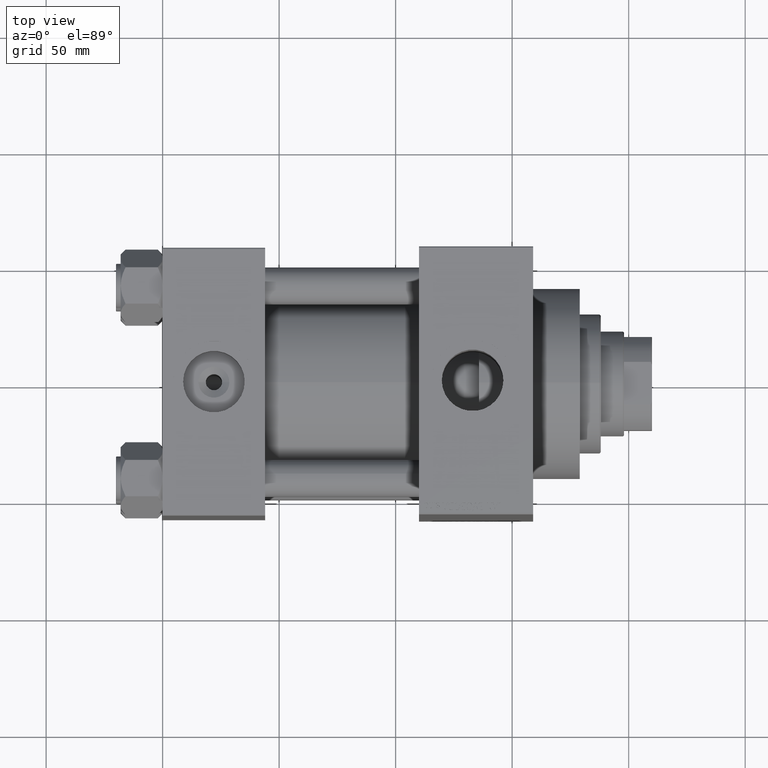
[diagram: clean part render]
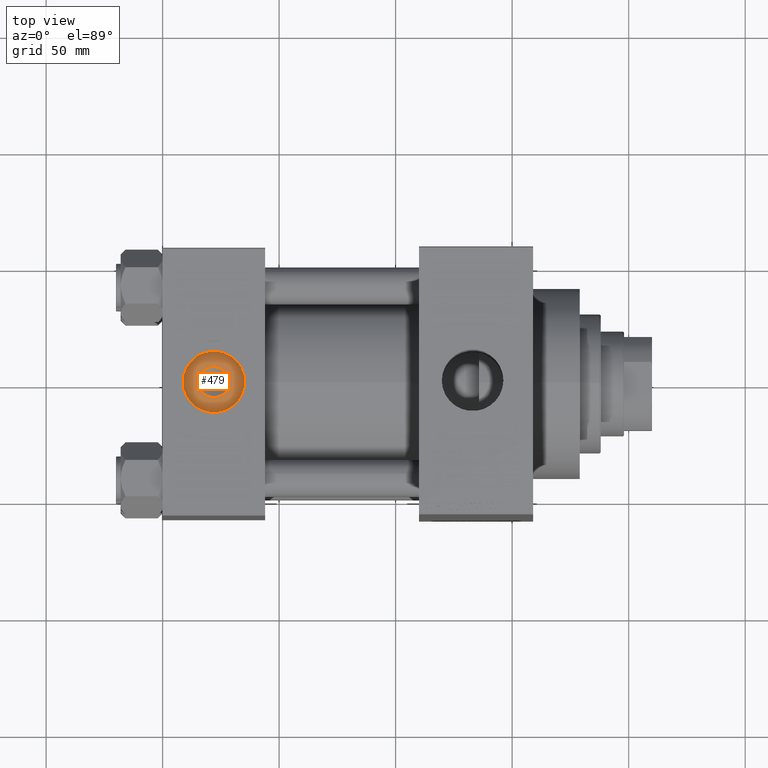
[diagram: same view with one face highlighted and labeled with its STEP entity id]
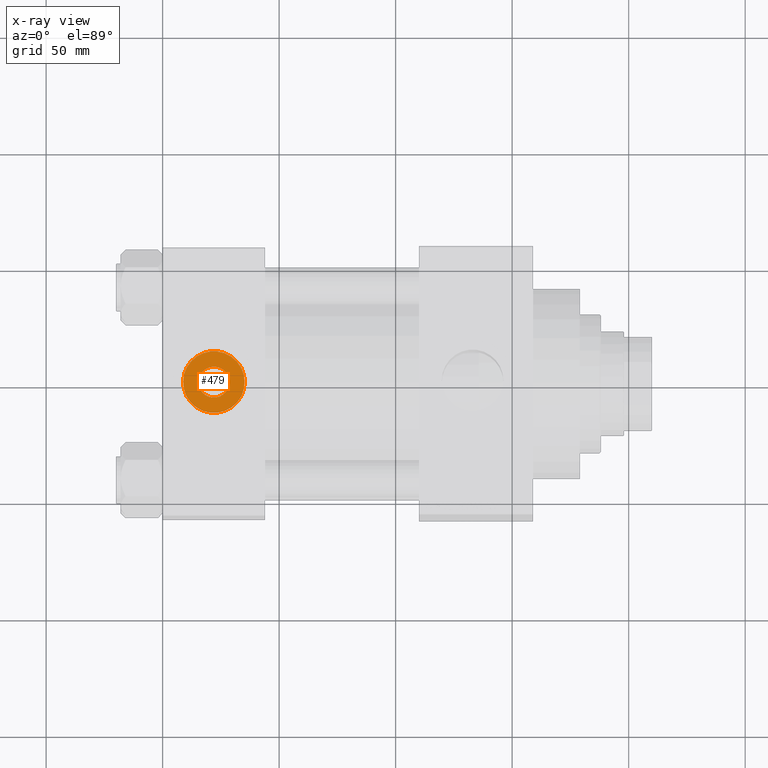
[diagram: x-ray of the same camera — body ghosted, the highlighted face saturated]
A machine part, top view. The second image highlights one B-rep face of the part: STEP entity #479.
The next image is the same camera in x-ray: the body ghosted, the highlighted face saturated — about 0% of this face is hidden behind the body in this view.
In plain terms, the highlighted planar face has unit normal (0, 0, 1).
Its self-contained STEP definition (entity closure, byte-faithful):
#424 = EDGE_LOOP ( 'NONE', ( #35836, #1195 ) ) ;
#449 = ORIENTED_EDGE ( 'NONE', *, *, #18830, .T. ) ;
#479 = ADVANCED_FACE ( 'NONE', ( #18310, #32998 ), #13975, .T. ) ;
#1195 = ORIENTED_EDGE ( 'NONE', *, *, #31310, .T. ) ;
#2585 = CARTESIAN_POINT ( 'NONE',  ( 8.779999999999994031, -7.054634311411234321E-15, 46.70000000000000284 ) ) ;
#2860 = DIRECTION ( 'NONE',  ( 1.000000000000000000, 0.000000000000000000, 0.000000000000000000 ) ) ;
#7948 = VERTEX_POINT ( 'NONE', #33106 ) ;
#10343 = DIRECTION ( 'NONE',  ( 1.000000000000000000, 0.000000000000000000, -0.000000000000000000 ) ) ;
#10497 = DIRECTION ( 'NONE',  ( 0.000000000000000000, 0.000000000000000000, 1.000000000000000000 ) ) ;
#11576 = AXIS2_PLACEMENT_3D ( 'NONE', #14689, #43360, #10343 ) ;
#12182 = DIRECTION ( 'NONE',  ( 0.000000000000000000, 0.000000000000000000, 1.000000000000000000 ) ) ;
#13876 = VERTEX_POINT ( 'NONE', #37362 ) ;
#13975 = PLANE ( 'NONE',  #11576 ) ;
#14689 = CARTESIAN_POINT ( 'NONE',  ( 22.00000000000000000, -8.673617379884035472E-15, 46.70000000000000284 ) ) ;
#16324 = AXIS2_PLACEMENT_3D ( 'NONE', #43511, #10497, #31709 ) ;
#16734 = DIRECTION ( 'NONE',  ( 1.000000000000000000, 0.000000000000000000, 0.000000000000000000 ) ) ;
#18310 = FACE_BOUND ( 'NONE', #26445, .T. ) ;
#18830 = EDGE_CURVE ( 'NONE', #13876, #24889, #41633, .T. ) ;
#20859 = AXIS2_PLACEMENT_3D ( 'NONE', #23977, #42274, #16734 ) ;
#20888 = EDGE_CURVE ( 'NONE', #7948, #23759, #20967, .T. ) ;
#20967 = CIRCLE ( 'NONE', #16324, 13.22000000000000242 ) ;
#21437 = ORIENTED_EDGE ( 'NONE', *, *, #38056, .T. ) ;
#22153 = DIRECTION ( 'NONE',  ( -0.000000000000000000, -0.000000000000000000, -1.000000000000000000 ) ) ;
#23759 = VERTEX_POINT ( 'NONE', #2585 ) ;
#23977 = CARTESIAN_POINT ( 'NONE',  ( 22.00000000000000000, -8.673617379884035472E-15, 46.70000000000000284 ) ) ;
#24889 = VERTEX_POINT ( 'NONE', #38621 ) ;
#26445 = EDGE_LOOP ( 'NONE', ( #21437, #449 ) ) ;
#26882 = DIRECTION ( 'NONE',  ( 1.000000000000000000, 0.000000000000000000, 0.000000000000000000 ) ) ;
#28156 = CIRCLE ( 'NONE', #32785, 6.640000000000006786 ) ;
#29773 = CARTESIAN_POINT ( 'NONE',  ( 22.00000000000000000, -8.673617379884035472E-15, 46.70000000000000284 ) ) ;
#31310 = EDGE_CURVE ( 'NONE', #23759, #7948, #46442, .T. ) ;
#31709 = DIRECTION ( 'NONE',  ( 1.000000000000000000, 0.000000000000000000, 0.000000000000000000 ) ) ;
#32785 = AXIS2_PLACEMENT_3D ( 'NONE', #32983, #22153, #2860 ) ;
#32983 = CARTESIAN_POINT ( 'NONE',  ( 22.00000000000000000, -8.673617379884035472E-15, 46.70000000000000284 ) ) ;
#32998 = FACE_OUTER_BOUND ( 'NONE', #424, .T. ) ;
#33106 = CARTESIAN_POINT ( 'NONE',  ( 35.21999999999999886, -8.673617379884035472E-15, 46.70000000000000284 ) ) ;
#34125 = AXIS2_PLACEMENT_3D ( 'NONE', #29773, #12182, #26882 ) ;
#35836 = ORIENTED_EDGE ( 'NONE', *, *, #20888, .T. ) ;
#37362 = CARTESIAN_POINT ( 'NONE',  ( 15.35999999999999233, -7.860451905250192574E-15, 46.70000000000000284 ) ) ;
#38056 = EDGE_CURVE ( 'NONE', #24889, #13876, #28156, .T. ) ;
#38621 = CARTESIAN_POINT ( 'NONE',  ( 28.64000000000000412, -8.673617379884035472E-15, 46.70000000000000284 ) ) ;
#41633 = CIRCLE ( 'NONE', #20859, 6.640000000000006786 ) ;
#42274 = DIRECTION ( 'NONE',  ( -0.000000000000000000, -0.000000000000000000, -1.000000000000000000 ) ) ;
#43360 = DIRECTION ( 'NONE',  ( 0.000000000000000000, 0.000000000000000000, 1.000000000000000000 ) ) ;
#43511 = CARTESIAN_POINT ( 'NONE',  ( 22.00000000000000000, -8.673617379884035472E-15, 46.70000000000000284 ) ) ;
#46442 = CIRCLE ( 'NONE', #34125, 13.22000000000000242 ) ;